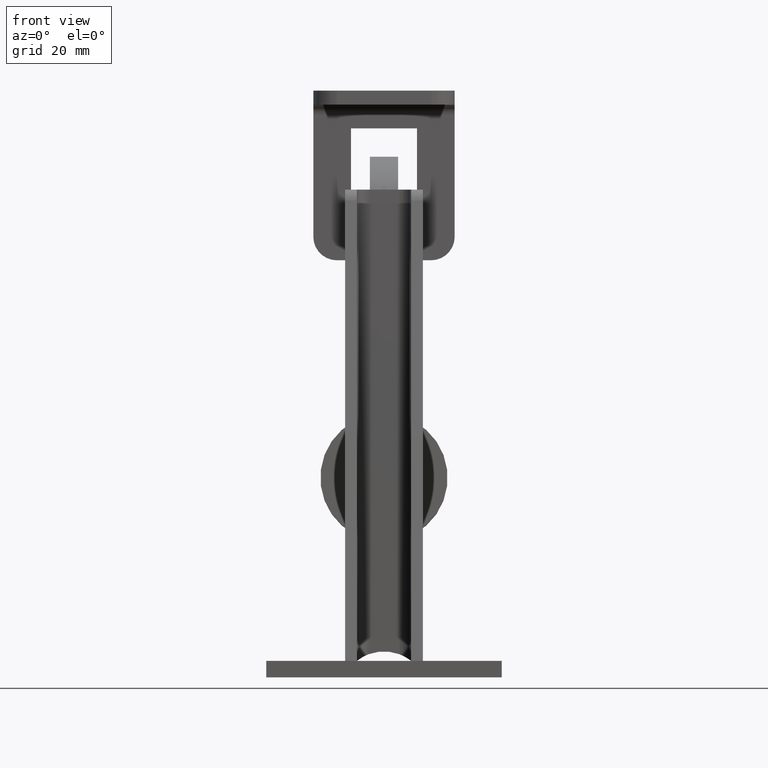
[diagram: clean part render]
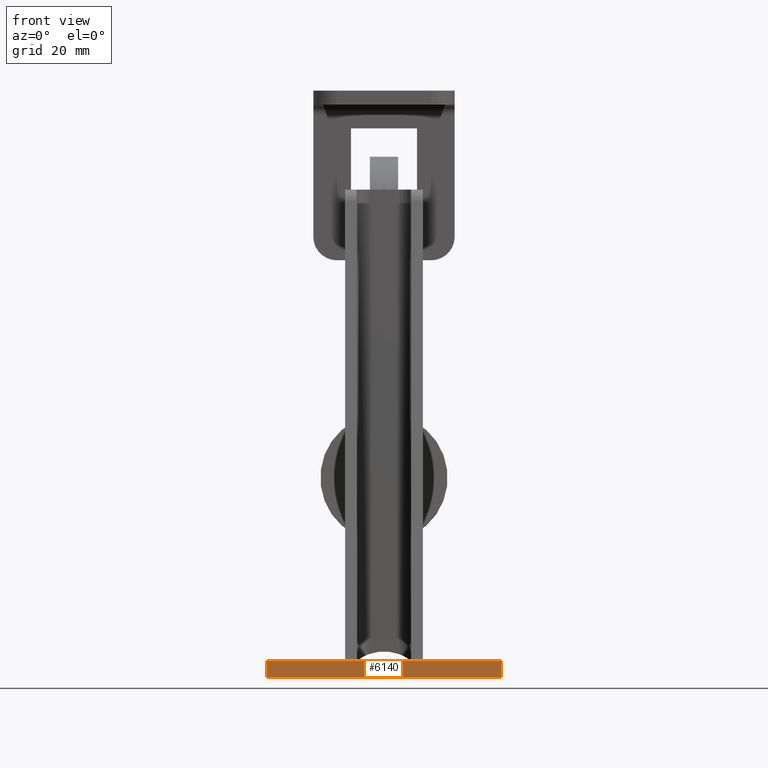
[diagram: same view with one face highlighted and labeled with its STEP entity id]
A machine part, front view. The second image highlights one B-rep face of the part: STEP entity #6140.
In plain terms, the highlighted planar face has unit normal (-0, 1, 0).
Its self-contained STEP definition (entity closure, byte-faithful):
#26 = PLANE ( 'NONE',  #11270 ) ;
#631 = CARTESIAN_POINT ( 'NONE',  ( 25.00000000000004600, -32.49999999999998600, 3.500000000000000000 ) ) ;
#1719 = CARTESIAN_POINT ( 'NONE',  ( -25.00000000000003200, -32.49999999999999300, 3.500000000000000000 ) ) ;
#1867 = FACE_OUTER_BOUND ( 'NONE', #4937, .T. ) ;
#2764 = LINE ( 'NONE', #12346, #7238 ) ;
#2833 = ORIENTED_EDGE ( 'NONE', *, *, #13631, .T. ) ;
#3165 = LINE ( 'NONE', #631, #9932 ) ;
#3486 = VECTOR ( 'NONE', #11271, 1000.000000000000000 ) ;
#3865 = DIRECTION ( 'NONE',  ( 1.000000000000000000, 1.387778780781443500E-016, 0.0000000000000000000 ) ) ;
#4263 = DIRECTION ( 'NONE',  ( -1.387778780781443700E-016, 1.000000000000000000, 0.0000000000000000000 ) ) ;
#4468 = CARTESIAN_POINT ( 'NONE',  ( -25.00000000000003200, -32.49999999999999300, 0.0000000000000000000 ) ) ;
#4937 = EDGE_LOOP ( 'NONE', ( #2833, #8136, #8166, #11195 ) ) ;
#5158 = VERTEX_POINT ( 'NONE', #4468 ) ;
#5181 = CARTESIAN_POINT ( 'NONE',  ( 25.00000000000004600, -32.49999999999998600, 3.500000000000000000 ) ) ;
#5335 = VERTEX_POINT ( 'NONE', #8134 ) ;
#5784 = EDGE_CURVE ( 'NONE', #5335, #10079, #7678, .T. ) ;
#6140 = ADVANCED_FACE ( 'NONE', ( #1867 ), #26, .F. ) ;
#7238 = VECTOR ( 'NONE', #3865, 1000.000000000000000 ) ;
#7465 = DIRECTION ( 'NONE',  ( -1.000000000000000000, -1.387778780781443700E-016, 0.0000000000000000000 ) ) ;
#7678 = LINE ( 'NONE', #1719, #9828 ) ;
#8134 = CARTESIAN_POINT ( 'NONE',  ( -25.00000000000003200, -32.49999999999999300, 3.500000000000000000 ) ) ;
#8136 = ORIENTED_EDGE ( 'NONE', *, *, #10739, .F. ) ;
#8166 = ORIENTED_EDGE ( 'NONE', *, *, #5784, .F. ) ;
#8449 = CARTESIAN_POINT ( 'NONE',  ( -25.00000000000003200, -32.49999999999999300, 3.500000000000000000 ) ) ;
#9109 = CARTESIAN_POINT ( 'NONE',  ( -25.00000000000003200, -32.49999999999999300, 3.500000000000000000 ) ) ;
#9112 = DIRECTION ( 'NONE',  ( 1.000000000000000000, 1.387778780781443500E-016, 0.0000000000000000000 ) ) ;
#9536 = VERTEX_POINT ( 'NONE', #13360 ) ;
#9828 = VECTOR ( 'NONE', #9112, 1000.000000000000000 ) ;
#9932 = VECTOR ( 'NONE', #10269, 1000.000000000000000 ) ;
#10079 = VERTEX_POINT ( 'NONE', #5181 ) ;
#10269 = DIRECTION ( 'NONE',  ( -0.0000000000000000000, -0.0000000000000000000, -1.000000000000000000 ) ) ;
#10739 = EDGE_CURVE ( 'NONE', #10079, #9536, #3165, .T. ) ;
#11096 = EDGE_CURVE ( 'NONE', #5335, #5158, #13773, .T. ) ;
#11195 = ORIENTED_EDGE ( 'NONE', *, *, #11096, .T. ) ;
#11270 = AXIS2_PLACEMENT_3D ( 'NONE', #8449, #4263, #7465 ) ;
#11271 = DIRECTION ( 'NONE',  ( -0.0000000000000000000, -0.0000000000000000000, -1.000000000000000000 ) ) ;
#12346 = CARTESIAN_POINT ( 'NONE',  ( -25.00000000000003200, -32.49999999999999300, 0.0000000000000000000 ) ) ;
#13360 = CARTESIAN_POINT ( 'NONE',  ( 25.00000000000004600, -32.49999999999998600, 0.0000000000000000000 ) ) ;
#13631 = EDGE_CURVE ( 'NONE', #5158, #9536, #2764, .T. ) ;
#13773 = LINE ( 'NONE', #9109, #3486 ) ;